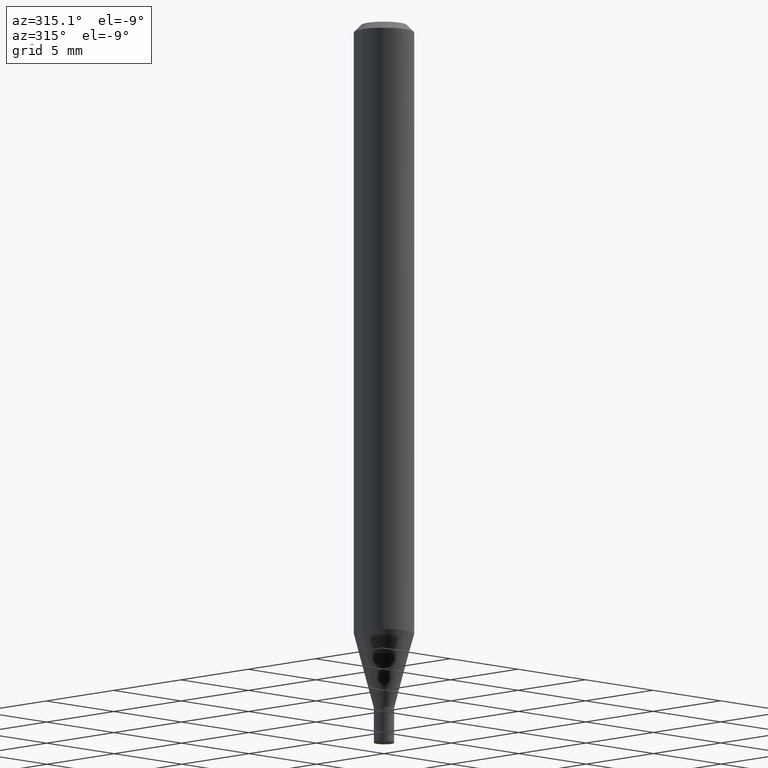
[diagram: clean part render]
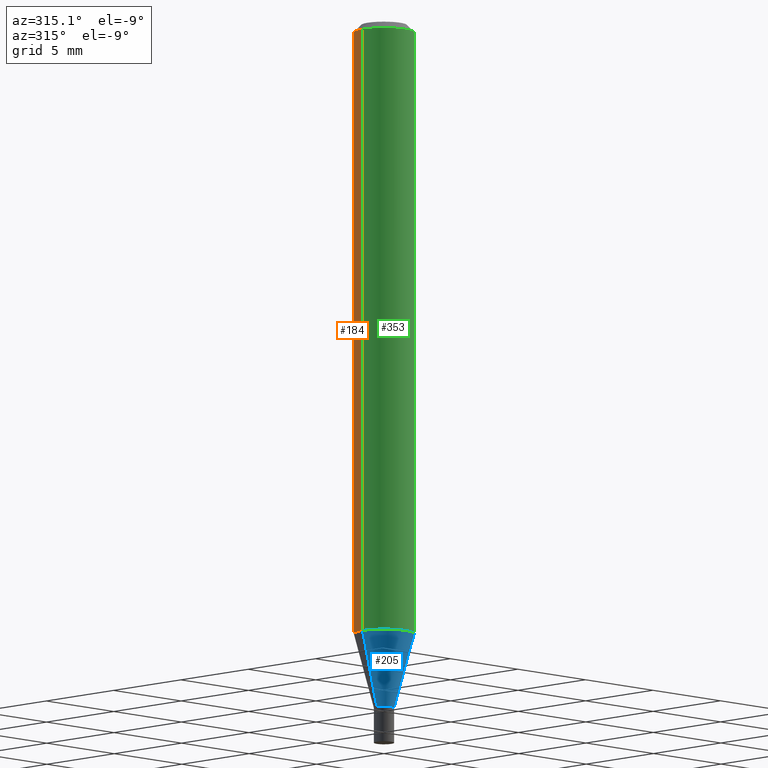
[diagram: same view with three faces highlighted in distinct colors, each labeled with its STEP entity id]
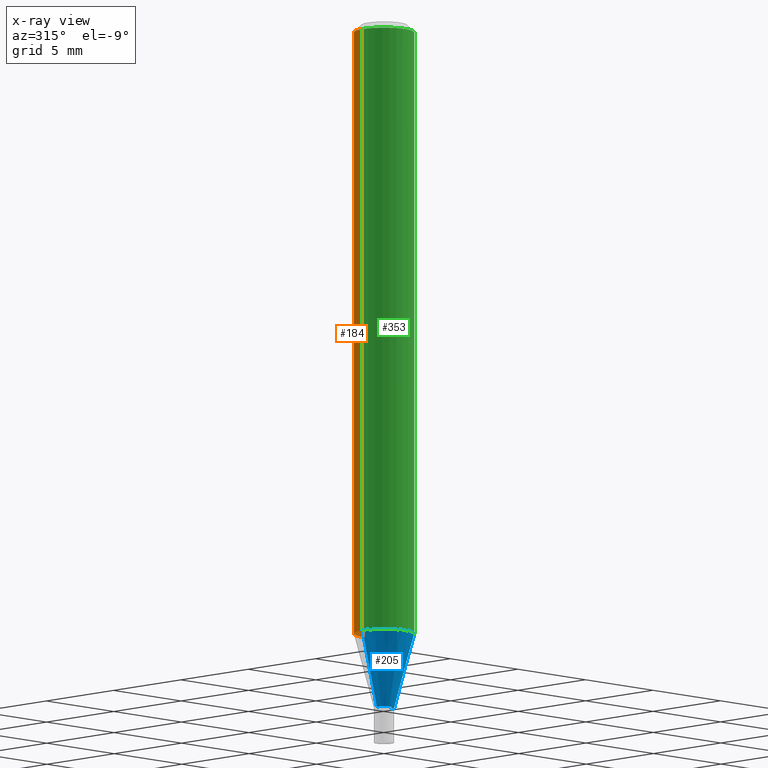
[diagram: x-ray of the same camera — body ghosted, the three highlighted faces saturated]
A machine part, auxiliary view with three faces highlighted in distinct colors.
The next image is the same camera in x-ray (body ghosted, the three faces saturated) — at least one of them is partly hidden behind the body in this view.
Their STEP definitions:

[orange] entity #184 — the highlighted cylindrical surface (edge-blend (fillet) strip) has radius 1.5875 mm, axis along (-0, 0, 1).
#15 = VECTOR ( 'NONE', #165, 39.37007874015748143 ) ;
#36 = ORIENTED_EDGE ( 'NONE', *, *, #66, .T. ) ;
#43 = VECTOR ( 'NONE', #355, 39.37007874015748143 ) ;
#66 = EDGE_CURVE ( 'NONE', #295, #302, #76, .T. ) ;
#76 = LINE ( 'NONE', #305, #15 ) ;
#80 = CARTESIAN_POINT ( 'NONE',  ( 0.06250000000000000000, -4.878018029249550992E-15, -1.272119891485891996 ) ) ;
#90 = DIRECTION ( 'NONE',  ( -2.445468806185136597E-29, 3.491481338843145583E-15, 1.000000000000000000 ) ) ;
#112 = EDGE_CURVE ( 'NONE', #148, #449, #389, .T. ) ;
#116 = ORIENTED_EDGE ( 'NONE', *, *, #112, .F. ) ;
#120 = CARTESIAN_POINT ( 'NONE',  ( -0.06250000000000000000, -1.802888331138340782E-15, -0.01499999999999999944 ) ) ;
#130 = AXIS2_PLACEMENT_3D ( 'NONE', #367, #384, #266 ) ;
#138 = EDGE_CURVE ( 'NONE', #449, #302, #139, .T. ) ;
#139 = CIRCLE ( 'NONE', #130, 0.06250000000000000000 ) ;
#148 = VERTEX_POINT ( 'NONE', #80 ) ;
#149 = ORIENTED_EDGE ( 'NONE', *, *, #138, .F. ) ;
#151 = DIRECTION ( 'NONE',  ( 1.000000000000000000, -6.982962677686266711E-15, 4.876176775795935793E-29 ) ) ;
#158 = CARTESIAN_POINT ( 'NONE',  ( 3.110929512356370285E-29, -4.441582861894159323E-15, -1.272119891485891996 ) ) ;
#165 = DIRECTION ( 'NONE',  ( -2.445468806185136877E-29, 3.491481338843145188E-15, 1.000000000000000000 ) ) ;
#184 = ADVANCED_FACE ( 'NONE', ( #333 ), #235, .T. ) ;
#210 = CARTESIAN_POINT ( 'NONE',  ( 0.06250000000000000000, -4.364351673553916694E-16, 3.047610484872459871E-30 ) ) ;
#225 = EDGE_CURVE ( 'NONE', #148, #295, #363, .T. ) ;
#232 = CARTESIAN_POINT ( 'NONE',  ( -0.06250000000000000000, -3.997493652044096706E-15, -1.272119891485891996 ) ) ;
#235 = CYLINDRICAL_SURFACE ( 'NONE', #357, 0.06250000000000000000 ) ;
#266 = DIRECTION ( 'NONE',  ( 1.000000000000000000, -6.982962677686266711E-15, 0.000000000000000000 ) ) ;
#295 = VERTEX_POINT ( 'NONE', #232 ) ;
#302 = VERTEX_POINT ( 'NONE', #120 ) ;
#305 = CARTESIAN_POINT ( 'NONE',  ( -0.06250000000000000000, 4.440892098500626162E-16, -3.074334431409316114E-30 ) ) ;
#333 = FACE_OUTER_BOUND ( 'NONE', #380, .T. ) ;
#355 = DIRECTION ( 'NONE',  ( -2.445468806185136877E-29, 3.491481338843145188E-15, 1.000000000000000000 ) ) ;
#357 = AXIS2_PLACEMENT_3D ( 'NONE', #450, #90, #151 ) ;
#363 = CIRCLE ( 'NONE', #392, 0.06250000000000000000 ) ;
#367 = CARTESIAN_POINT ( 'NONE',  ( 3.668203209277705088E-31, -5.237222008264718399E-17, -0.01499999999999999944 ) ) ;
#378 = DIRECTION ( 'NONE',  ( 1.000000000000000000, -6.982962677686262766E-15, 0.000000000000000000 ) ) ;
#380 = EDGE_LOOP ( 'NONE', ( #435, #36, #149, #116 ) ) ;
#384 = DIRECTION ( 'NONE',  ( -2.445468806185136597E-29, 3.491481338843145583E-15, 1.000000000000000000 ) ) ;
#389 = LINE ( 'NONE', #210, #43 ) ;
#392 = AXIS2_PLACEMENT_3D ( 'NONE', #158, #447, #378 ) ;
#395 = CARTESIAN_POINT ( 'NONE',  ( 0.06250000000000000000, -4.888073874380388472E-16, -0.01499999999999999944 ) ) ;
#435 = ORIENTED_EDGE ( 'NONE', *, *, #225, .T. ) ;
#447 = DIRECTION ( 'NONE',  ( -2.445468806185136597E-29, 3.491481338843145583E-15, 1.000000000000000000 ) ) ;
#449 = VERTEX_POINT ( 'NONE', #395 ) ;
#450 = CARTESIAN_POINT ( 'NONE',  ( 0.000000000000000000, 0.000000000000000000, 0.000000000000000000 ) ) ;

[blue] entity #205 — the highlighted conical surface has half-angle 15 deg.
#12 = ORIENTED_EDGE ( 'NONE', *, *, #67, .F. ) ;
#16 = DIRECTION ( 'NONE',  ( 0.2588190451025217387, 1.565188264969619207E-15, 0.9659258262890679791 ) ) ;
#42 = DIRECTION ( 'NONE',  ( 1.000000000000000000, -6.982962677686263555E-15, 0.000000000000000000 ) ) ;
#47 = DIRECTION ( 'NONE',  ( -2.445468806185136597E-29, 3.491481338843145583E-15, 1.000000000000000000 ) ) ;
#67 = EDGE_CURVE ( 'NONE', #72, #295, #279, .T. ) ;
#68 = VERTEX_POINT ( 'NONE', #190 ) ;
#72 = VERTEX_POINT ( 'NONE', #93 ) ;
#80 = CARTESIAN_POINT ( 'NONE',  ( 0.06250000000000000000, -4.878018029249550992E-15, -1.272119891485891996 ) ) ;
#93 = CARTESIAN_POINT ( 'NONE',  ( -0.02099999999999993192, -4.415311774031822362E-15, -1.427000000000000046 ) ) ;
#106 = CIRCLE ( 'NONE', #213, 0.02099999999999993192 ) ;
#111 = CARTESIAN_POINT ( 'NONE',  ( 3.489683986426190072E-29, -4.982343870529169189E-15, -1.427000000000000046 ) ) ;
#122 = CARTESIAN_POINT ( 'NONE',  ( -0.02099999999999993192, -4.833129896019548018E-15, -1.427000000000000046 ) ) ;
#135 = FACE_OUTER_BOUND ( 'NONE', #386, .T. ) ;
#148 = VERTEX_POINT ( 'NONE', #80 ) ;
#156 = ORIENTED_EDGE ( 'NONE', *, *, #185, .T. ) ;
#180 = VECTOR ( 'NONE', #456, 39.37007874015748854 ) ;
#185 = EDGE_CURVE ( 'NONE', #68, #148, #203, .T. ) ;
#190 = CARTESIAN_POINT ( 'NONE',  ( 0.02099999999999993192, -5.128986086760580222E-15, -1.427000000000000046 ) ) ;
#203 = LINE ( 'NONE', #348, #362 ) ;
#205 = ADVANCED_FACE ( 'NONE', ( #135 ), #248, .T. ) ;
#213 = AXIS2_PLACEMENT_3D ( 'NONE', #111, #418, #42 ) ;
#229 = DIRECTION ( 'NONE',  ( -2.445468806185136597E-29, 3.491481338843145583E-15, 1.000000000000000000 ) ) ;
#232 = CARTESIAN_POINT ( 'NONE',  ( -0.06250000000000000000, -3.997493652044096706E-15, -1.272119891485891996 ) ) ;
#248 = CONICAL_SURFACE ( 'NONE', #425, 0.02099999999999993192, 0.2617993877991504625 ) ;
#255 = EDGE_CURVE ( 'NONE', #295, #148, #451, .T. ) ;
#270 = ORIENTED_EDGE ( 'NONE', *, *, #288, .T. ) ;
#273 = CARTESIAN_POINT ( 'NONE',  ( 3.110929512356370285E-29, -4.441582861894159323E-15, -1.272119891485891996 ) ) ;
#278 = CARTESIAN_POINT ( 'NONE',  ( 3.489683986426190072E-29, -4.982343870529169189E-15, -1.427000000000000046 ) ) ;
#279 = LINE ( 'NONE', #122, #180 ) ;
#288 = EDGE_CURVE ( 'NONE', #72, #68, #106, .T. ) ;
#295 = VERTEX_POINT ( 'NONE', #232 ) ;
#300 = DIRECTION ( 'NONE',  ( 1.000000000000000000, -6.982962677686263555E-15, 0.000000000000000000 ) ) ;
#301 = AXIS2_PLACEMENT_3D ( 'NONE', #273, #47, #383 ) ;
#348 = CARTESIAN_POINT ( 'NONE',  ( 0.02099999999999993192, -5.128986086760580222E-15, -1.427000000000000046 ) ) ;
#362 = VECTOR ( 'NONE', #16, 39.37007874015748854 ) ;
#383 = DIRECTION ( 'NONE',  ( 1.000000000000000000, -6.982962677686262766E-15, 0.000000000000000000 ) ) ;
#386 = EDGE_LOOP ( 'NONE', ( #12, #270, #156, #411 ) ) ;
#411 = ORIENTED_EDGE ( 'NONE', *, *, #255, .F. ) ;
#418 = DIRECTION ( 'NONE',  ( -2.445468806185136597E-29, 3.491481338843145583E-15, 1.000000000000000000 ) ) ;
#425 = AXIS2_PLACEMENT_3D ( 'NONE', #278, #229, #300 ) ;
#451 = CIRCLE ( 'NONE', #301, 0.06250000000000000000 ) ;
#456 = DIRECTION ( 'NONE',  ( -0.2588190451025217387, 5.211531920934551042E-15, 0.9659258262890679791 ) ) ;

[green] entity #353 — the highlighted cylindrical surface (edge-blend (fillet) strip) has radius 1.5875 mm, axis along (-0, 0, 1).
#1 = DIRECTION ( 'NONE',  ( 1.000000000000000000, -6.982962677686266711E-15, 0.000000000000000000 ) ) ;
#15 = VECTOR ( 'NONE', #165, 39.37007874015748143 ) ;
#35 = CARTESIAN_POINT ( 'NONE',  ( 0.000000000000000000, 0.000000000000000000, 0.000000000000000000 ) ) ;
#43 = VECTOR ( 'NONE', #355, 39.37007874015748143 ) ;
#47 = DIRECTION ( 'NONE',  ( -2.445468806185136597E-29, 3.491481338843145583E-15, 1.000000000000000000 ) ) ;
#54 = CIRCLE ( 'NONE', #147, 0.06250000000000000000 ) ;
#66 = EDGE_CURVE ( 'NONE', #295, #302, #76, .T. ) ;
#76 = LINE ( 'NONE', #305, #15 ) ;
#77 = EDGE_LOOP ( 'NONE', ( #400, #381, #344, #92 ) ) ;
#80 = CARTESIAN_POINT ( 'NONE',  ( 0.06250000000000000000, -4.878018029249550992E-15, -1.272119891485891996 ) ) ;
#92 = ORIENTED_EDGE ( 'NONE', *, *, #309, .F. ) ;
#112 = EDGE_CURVE ( 'NONE', #148, #449, #389, .T. ) ;
#120 = CARTESIAN_POINT ( 'NONE',  ( -0.06250000000000000000, -1.802888331138340782E-15, -0.01499999999999999944 ) ) ;
#147 = AXIS2_PLACEMENT_3D ( 'NONE', #347, #332, #1 ) ;
#148 = VERTEX_POINT ( 'NONE', #80 ) ;
#165 = DIRECTION ( 'NONE',  ( -2.445468806185136877E-29, 3.491481338843145188E-15, 1.000000000000000000 ) ) ;
#187 = DIRECTION ( 'NONE',  ( -2.445468806185136597E-29, 3.491481338843145583E-15, 1.000000000000000000 ) ) ;
#194 = DIRECTION ( 'NONE',  ( 1.000000000000000000, -6.982962677686266711E-15, 4.876176775795935793E-29 ) ) ;
#210 = CARTESIAN_POINT ( 'NONE',  ( 0.06250000000000000000, -4.364351673553916694E-16, 3.047610484872459871E-30 ) ) ;
#232 = CARTESIAN_POINT ( 'NONE',  ( -0.06250000000000000000, -3.997493652044096706E-15, -1.272119891485891996 ) ) ;
#255 = EDGE_CURVE ( 'NONE', #295, #148, #451, .T. ) ;
#271 = AXIS2_PLACEMENT_3D ( 'NONE', #35, #187, #194 ) ;
#273 = CARTESIAN_POINT ( 'NONE',  ( 3.110929512356370285E-29, -4.441582861894159323E-15, -1.272119891485891996 ) ) ;
#295 = VERTEX_POINT ( 'NONE', #232 ) ;
#301 = AXIS2_PLACEMENT_3D ( 'NONE', #273, #47, #383 ) ;
#302 = VERTEX_POINT ( 'NONE', #120 ) ;
#305 = CARTESIAN_POINT ( 'NONE',  ( -0.06250000000000000000, 4.440892098500626162E-16, -3.074334431409316114E-30 ) ) ;
#309 = EDGE_CURVE ( 'NONE', #302, #449, #54, .T. ) ;
#332 = DIRECTION ( 'NONE',  ( -2.445468806185136597E-29, 3.491481338843145583E-15, 1.000000000000000000 ) ) ;
#344 = ORIENTED_EDGE ( 'NONE', *, *, #112, .T. ) ;
#347 = CARTESIAN_POINT ( 'NONE',  ( 3.668203209277705088E-31, -5.237222008264718399E-17, -0.01499999999999999944 ) ) ;
#353 = ADVANCED_FACE ( 'NONE', ( #372 ), #366, .T. ) ;
#355 = DIRECTION ( 'NONE',  ( -2.445468806185136877E-29, 3.491481338843145188E-15, 1.000000000000000000 ) ) ;
#366 = CYLINDRICAL_SURFACE ( 'NONE', #271, 0.06250000000000000000 ) ;
#372 = FACE_OUTER_BOUND ( 'NONE', #77, .T. ) ;
#381 = ORIENTED_EDGE ( 'NONE', *, *, #255, .T. ) ;
#383 = DIRECTION ( 'NONE',  ( 1.000000000000000000, -6.982962677686262766E-15, 0.000000000000000000 ) ) ;
#389 = LINE ( 'NONE', #210, #43 ) ;
#395 = CARTESIAN_POINT ( 'NONE',  ( 0.06250000000000000000, -4.888073874380388472E-16, -0.01499999999999999944 ) ) ;
#400 = ORIENTED_EDGE ( 'NONE', *, *, #66, .F. ) ;
#449 = VERTEX_POINT ( 'NONE', #395 ) ;
#451 = CIRCLE ( 'NONE', #301, 0.06250000000000000000 ) ;